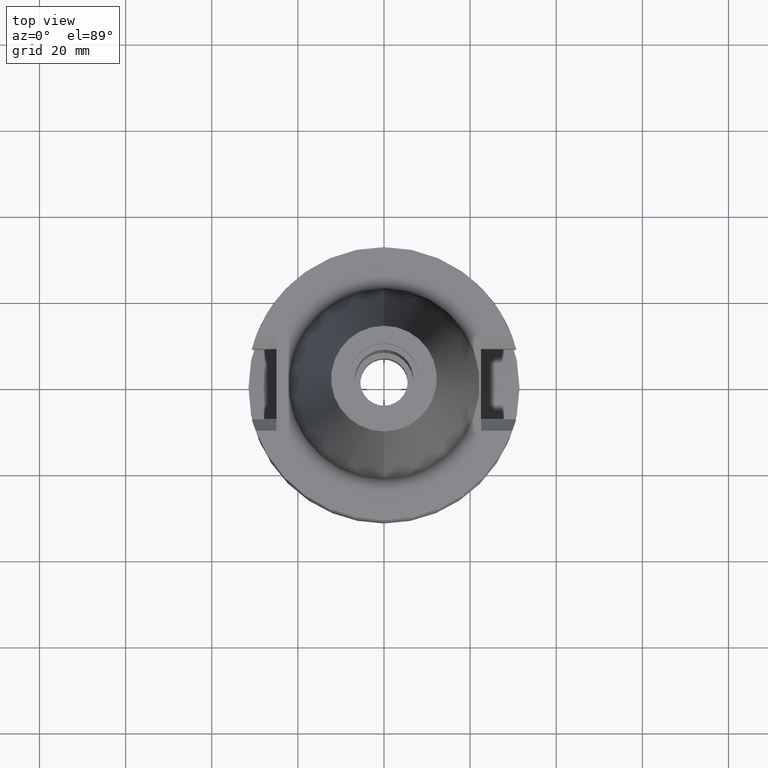
[diagram: clean part render]
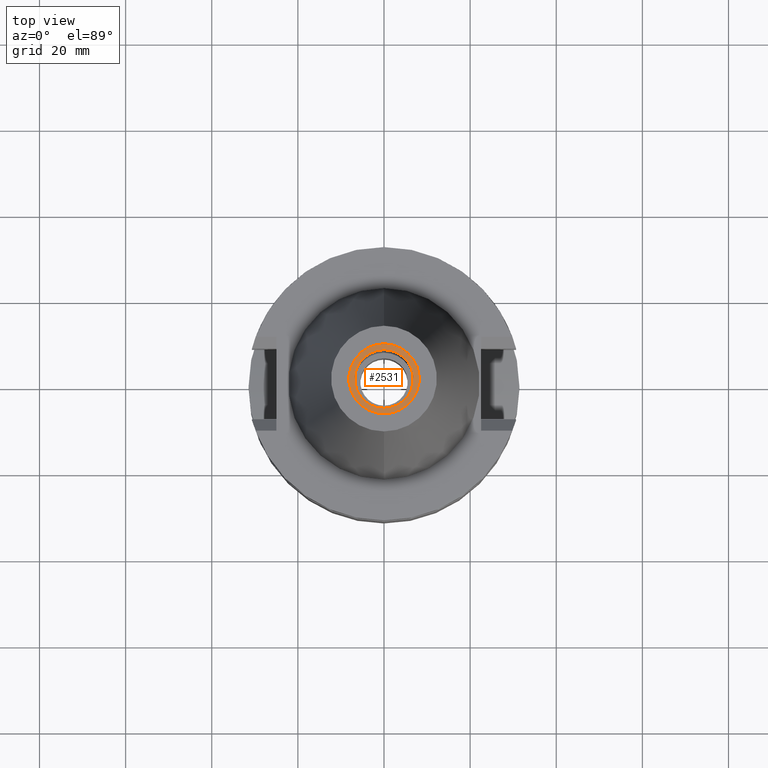
[diagram: same view with one face highlighted and labeled with its STEP entity id]
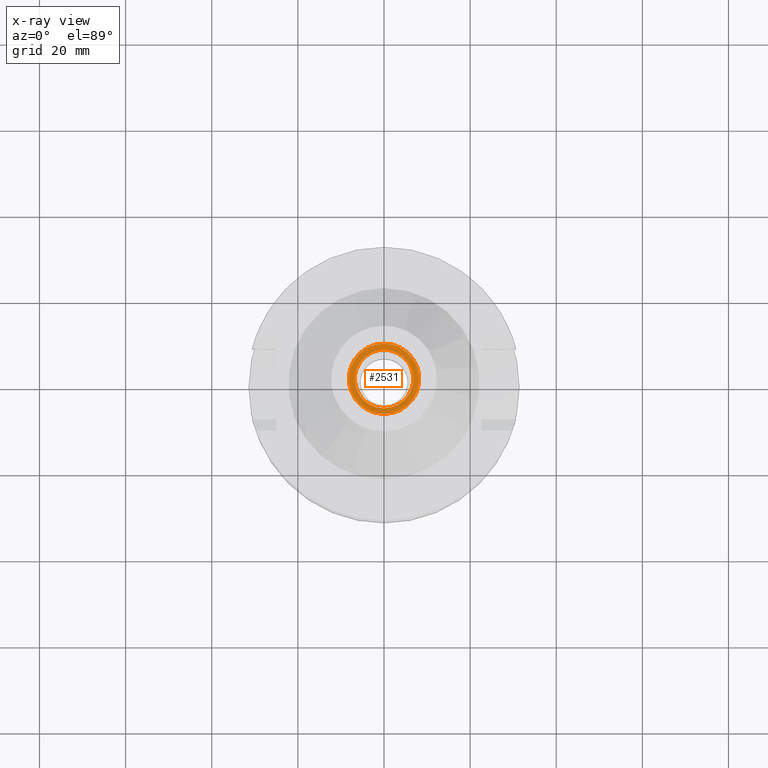
[diagram: x-ray of the same camera — body ghosted, the highlighted face saturated]
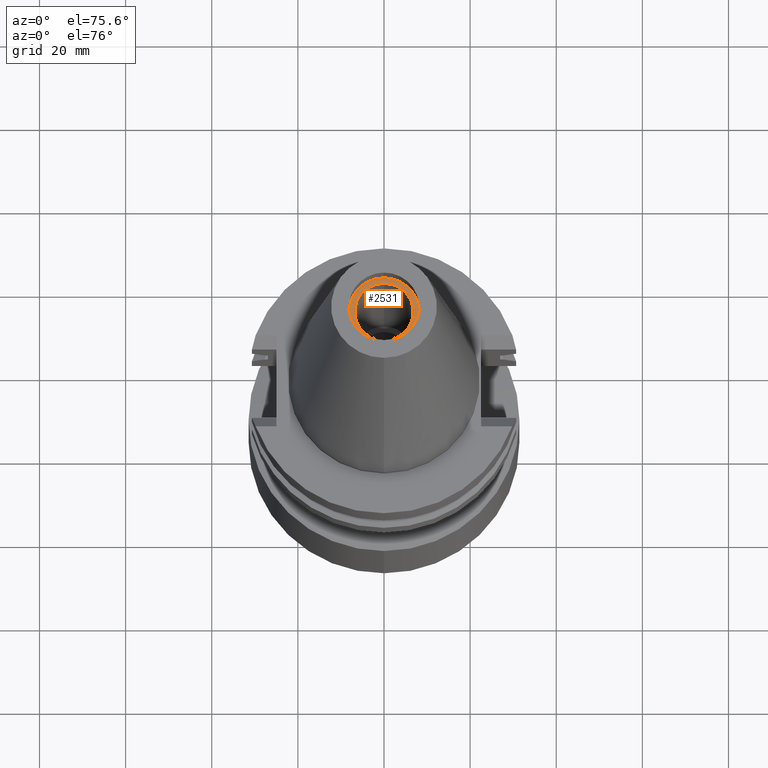
[diagram: same view with one face highlighted and labeled with its STEP entity id]
A machine part, top view. The second image highlights one B-rep face of the part: STEP entity #2531.
The next image is the same camera in x-ray: the body ghosted, the highlighted face saturated — about 0% of this face is hidden behind the body in this view.
A second angle (auxiliary view) of the same face is appended — the face is thin or edge-on in the first view.
In plain terms, the highlighted planar face has unit normal (0, 0, -1).
Its self-contained STEP definition (entity closure, byte-faithful):
#1256=CARTESIAN_POINT('',(0.E0,2.148918354634E-14,6.347E1));
#1257=DIRECTION('',(0.E0,0.E0,-1.E0));
#1258=DIRECTION('',(0.E0,-1.E0,0.E0));
#1259=AXIS2_PLACEMENT_3D('',#1256,#1257,#1258);
#1264=CARTESIAN_POINT('',(0.E0,2.148918354634E-14,6.347E1));
#1265=DIRECTION('',(0.E0,0.E0,-1.E0));
#1266=DIRECTION('',(0.E0,1.E0,0.E0));
#1267=AXIS2_PLACEMENT_3D('',#1264,#1265,#1266);
#1272=CARTESIAN_POINT('',(0.E0,2.148918354634E-14,6.347E1));
#1273=DIRECTION('',(0.E0,0.E0,1.E0));
#1274=DIRECTION('',(0.E0,-1.E0,0.E0));
#1275=AXIS2_PLACEMENT_3D('',#1272,#1273,#1274);
#1280=CARTESIAN_POINT('',(0.E0,2.148918354634E-14,6.347E1));
#1281=DIRECTION('',(0.E0,0.E0,1.E0));
#1282=DIRECTION('',(0.E0,1.E0,0.E0));
#1283=AXIS2_PLACEMENT_3D('',#1280,#1281,#1282);
#1310=CARTESIAN_POINT('',(0.E0,8.16E0,6.347E1));
#1311=VERTEX_POINT('',#1310);
#1312=CARTESIAN_POINT('',(0.E0,-8.16E0,6.347E1));
#1313=VERTEX_POINT('',#1312);
#1314=CARTESIAN_POINT('',(0.E0,-6.8E0,6.347E1));
#1315=CARTESIAN_POINT('',(0.E0,6.8E0,6.347E1));
#1316=VERTEX_POINT('',#1314);
#1317=VERTEX_POINT('',#1315);
#2516=CARTESIAN_POINT('',(0.E0,2.001930122566E-14,6.347E1));
#2517=DIRECTION('',(0.E0,0.E0,-1.E0));
#2518=DIRECTION('',(0.E0,-1.E0,0.E0));
#2519=AXIS2_PLACEMENT_3D('',#2516,#2517,#2518);
#2520=PLANE('',#2519);
#2522=ORIENTED_EDGE('',*,*,#2521,.T.);
#2524=ORIENTED_EDGE('',*,*,#2523,.T.);
#2525=EDGE_LOOP('',(#2522,#2524));
#2526=FACE_OUTER_BOUND('',#2525,.F.);
#2527=ORIENTED_EDGE('',*,*,#2509,.T.);
#2528=ORIENTED_EDGE('',*,*,#2498,.T.);
#2529=EDGE_LOOP('',(#2527,#2528));
#2530=FACE_BOUND('',#2529,.F.);
#1260=CIRCLE('',#1259,8.16E0);
#1268=CIRCLE('',#1267,8.16E0);
#1276=CIRCLE('',#1275,6.8E0);
#1284=CIRCLE('',#1283,6.8E0);
#2498=EDGE_CURVE('',#1317,#1316,#1284,.T.);
#2509=EDGE_CURVE('',#1316,#1317,#1276,.T.);
#2521=EDGE_CURVE('',#1313,#1311,#1260,.T.);
#2523=EDGE_CURVE('',#1311,#1313,#1268,.T.);
#2531=ADVANCED_FACE('',(#2526,#2530),#2520,.F.);